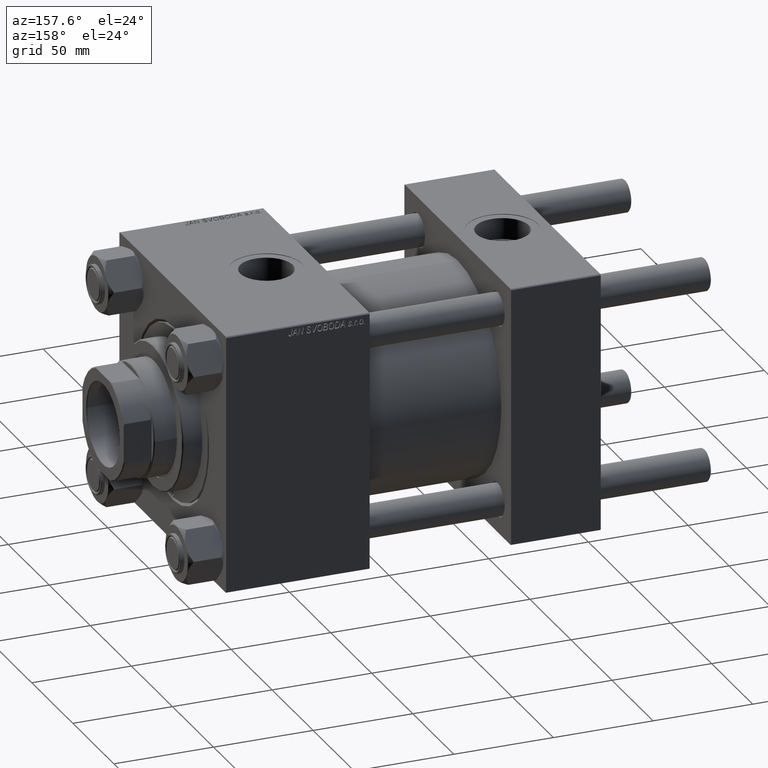
[diagram: clean part render]
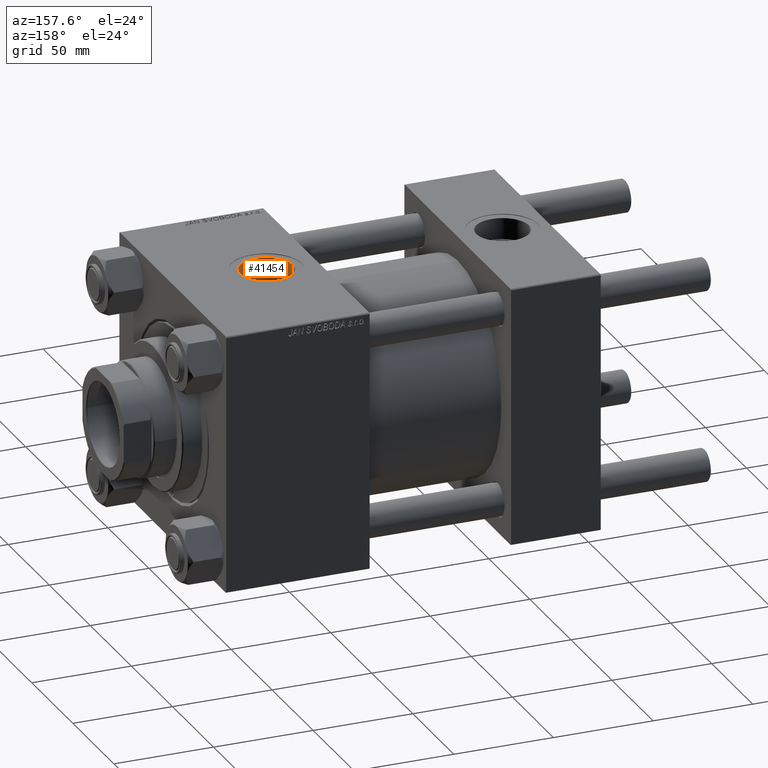
[diagram: same view with one face highlighted and labeled with its STEP entity id]
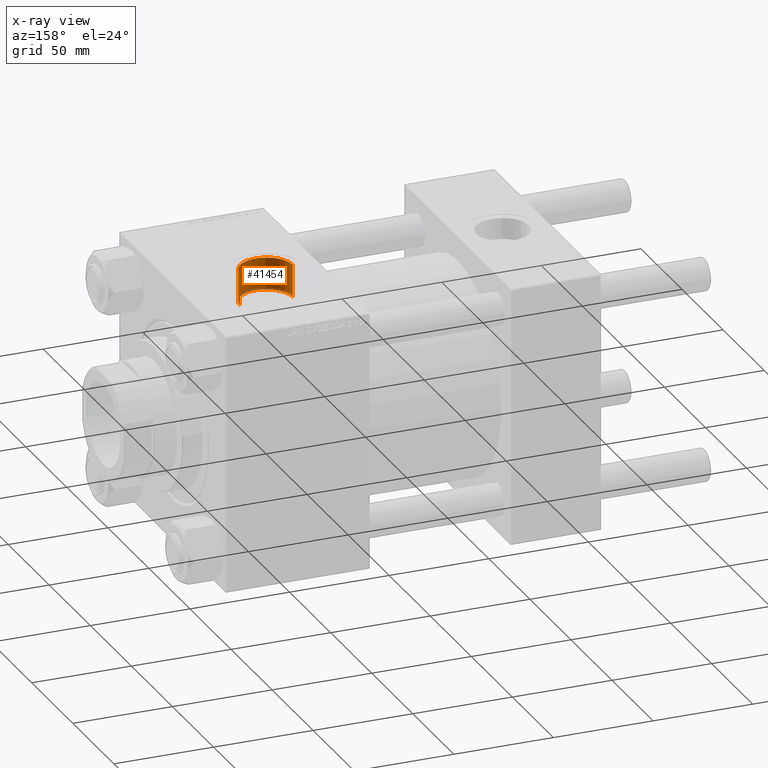
[diagram: x-ray of the same camera — body ghosted, the highlighted face saturated]
A machine part, auxiliary view. The second image highlights one B-rep face of the part: STEP entity #41454.
The next image is the same camera in x-ray: the body ghosted, the highlighted face saturated — about 6% of this face is hidden behind the body in this view.
In plain terms, the highlighted cylindrical surface (edge-blend (fillet) strip) has radius 13.22 mm, axis along (0, 0, -1).
Its self-contained STEP definition (entity closure, byte-faithful):
#617 = DIRECTION ( 'NONE',  ( 1.000000000000000000, 0.000000000000000000, 0.000000000000000000 ) ) ;
#1152 = CYLINDRICAL_SURFACE ( 'NONE', #3894, 13.22000000000000952 ) ;
#2209 = CARTESIAN_POINT ( 'NONE',  ( 154.2199999999999704, -5.319910835434425649E-15, 64.79999999999999716 ) ) ;
#3208 = DIRECTION ( 'NONE',  ( 0.000000000000000000, 0.000000000000000000, -1.000000000000000000 ) ) ;
#3894 = AXIS2_PLACEMENT_3D ( 'NONE', #25305, #4880, #21839 ) ;
#4880 = DIRECTION ( 'NONE',  ( 0.000000000000000000, 0.000000000000000000, -1.000000000000000000 ) ) ;
#7723 = EDGE_CURVE ( 'NONE', #22172, #37846, #39448, .T. ) ;
#9076 = DIRECTION ( 'NONE',  ( 0.000000000000000000, 0.000000000000000000, -1.000000000000000000 ) ) ;
#9323 = CARTESIAN_POINT ( 'NONE',  ( 154.2199999999999704, -5.319910835434425649E-15, 87.79999999999998295 ) ) ;
#10630 = ORIENTED_EDGE ( 'NONE', *, *, #31393, .T. ) ;
#12777 = LINE ( 'NONE', #9323, #44197 ) ;
#13296 = ORIENTED_EDGE ( 'NONE', *, *, #35326, .F. ) ;
#14658 = ORIENTED_EDGE ( 'NONE', *, *, #7723, .F. ) ;
#15516 = VERTEX_POINT ( 'NONE', #50277 ) ;
#15524 = ORIENTED_EDGE ( 'NONE', *, *, #50943, .F. ) ;
#21839 = DIRECTION ( 'NONE',  ( -1.000000000000000000, 0.000000000000000000, 0.000000000000000000 ) ) ;
#22172 = VERTEX_POINT ( 'NONE', #2209 ) ;
#23710 = AXIS2_PLACEMENT_3D ( 'NONE', #36711, #37238, #617 ) ;
#24705 = CARTESIAN_POINT ( 'NONE',  ( 154.2199999999999704, -5.319910835434425649E-15, 48.59999999999998721 ) ) ;
#25305 = CARTESIAN_POINT ( 'NONE',  ( 140.9999999999999716, -6.938893903907228378E-15, 87.79999999999998295 ) ) ;
#25334 = DIRECTION ( 'NONE',  ( -0.000000000000000000, -0.000000000000000000, -1.000000000000000000 ) ) ;
#26109 = CARTESIAN_POINT ( 'NONE',  ( 140.9999999999999716, -6.938893903907228378E-15, 64.79999999999999716 ) ) ;
#30756 = VECTOR ( 'NONE', #3208, 1000.000000000000000 ) ;
#30818 = LINE ( 'NONE', #47532, #30756 ) ;
#31393 = EDGE_CURVE ( 'NONE', #22172, #41801, #12777, .T. ) ;
#35326 = EDGE_CURVE ( 'NONE', #37846, #15516, #30818, .T. ) ;
#36711 = CARTESIAN_POINT ( 'NONE',  ( 140.9999999999999716, -6.938893903907228378E-15, 48.59999999999998721 ) ) ;
#37238 = DIRECTION ( 'NONE',  ( 0.000000000000000000, 0.000000000000000000, 1.000000000000000000 ) ) ;
#37509 = EDGE_LOOP ( 'NONE', ( #14658, #10630, #15524, #13296 ) ) ;
#37846 = VERTEX_POINT ( 'NONE', #42654 ) ;
#39448 = CIRCLE ( 'NONE', #46220, 13.22000000000000952 ) ;
#41454 = ADVANCED_FACE ( 'NONE', ( #49464 ), #1152, .F. ) ;
#41489 = CIRCLE ( 'NONE', #23710, 13.22000000000000952 ) ;
#41521 = DIRECTION ( 'NONE',  ( 1.000000000000000000, 0.000000000000000000, 0.000000000000000000 ) ) ;
#41801 = VERTEX_POINT ( 'NONE', #24705 ) ;
#42654 = CARTESIAN_POINT ( 'NONE',  ( 127.7799999999999443, -6.938893903907228378E-15, 64.79999999999999716 ) ) ;
#44197 = VECTOR ( 'NONE', #9076, 1000.000000000000000 ) ;
#46220 = AXIS2_PLACEMENT_3D ( 'NONE', #26109, #25334, #41521 ) ;
#47532 = CARTESIAN_POINT ( 'NONE',  ( 127.7799999999999443, -6.938893903907228378E-15, 87.79999999999998295 ) ) ;
#49464 = FACE_OUTER_BOUND ( 'NONE', #37509, .T. ) ;
#50277 = CARTESIAN_POINT ( 'NONE',  ( 127.7799999999999443, -6.938893903907228378E-15, 48.59999999999998721 ) ) ;
#50943 = EDGE_CURVE ( 'NONE', #15516, #41801, #41489, .T. ) ;